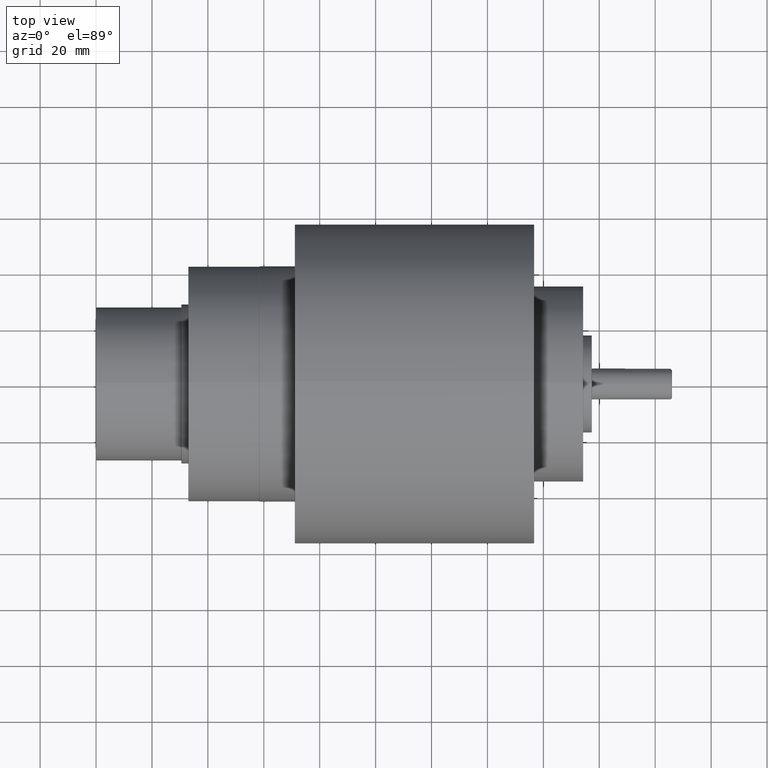
[diagram: clean part render]
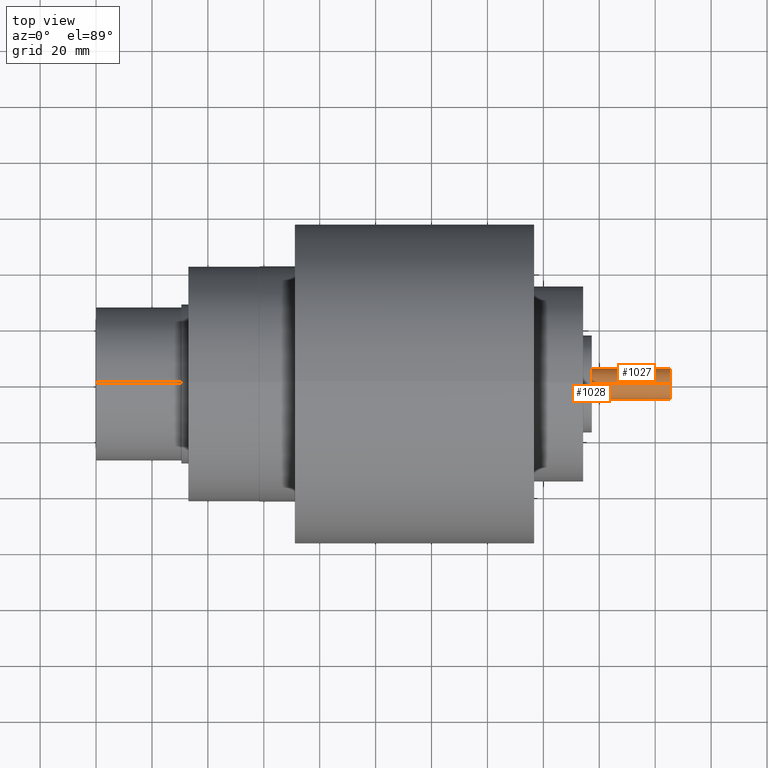
[diagram: same view with one multi-face feature highlighted, each face labeled with its STEP entity id]
A machine part, top view. The highlighted faces form ONE feature: a constant-radius fillet chain: 2 tangent blend faces with common blend radius 5.5499 mm. The faces share edges in the B-rep.
Their STEP definitions:
[1] entity #1027 (Cylinder):
#2 = EDGE_CURVE ( 'NONE', #249, #246, #1200, .T. ) ;
#8 = EDGE_CURVE ( 'NONE', #243, #244, #1205, .T. ) ;
#9 = EDGE_CURVE ( 'NONE', #250, #242, #1204, .T. ) ;
#10 = EDGE_CURVE ( 'NONE', #252, #245, #1210, .T. ) ;
#11 = EDGE_CURVE ( 'NONE', #242, #243, #191, .T. ) ;
#13 = EDGE_CURVE ( 'NONE', #252, #244, #1221, .T. ) ;
#77 = DIRECTION ( 'NONE',  ( 0.0000000000000000000, 0.0000000000000000000, -1.000000000000000000 ) ) ;
#123 = CARTESIAN_POINT ( 'NONE',  ( 8.090000000000005200, 0.0000000000000000000, 0.2185000000000000000 ) ) ;
#125 = CARTESIAN_POINT ( 'NONE',  ( 8.090000000000005200, 0.2133852150454665100, -0.04699999999999998600 ) ) ;
#127 = CARTESIAN_POINT ( 'NONE',  ( 6.979999999999999500, 2.675853256136966400E-017, -0.2185000000000000000 ) ) ;
#128 = CARTESIAN_POINT ( 'NONE',  ( 6.979999999999999500, 0.0000000000000000000, 0.2185000000000000000 ) ) ;
#129 = CARTESIAN_POINT ( 'NONE',  ( 8.090000000000005200, 0.2133852150454665100, 0.04699999999999998600 ) ) ;
#130 = CARTESIAN_POINT ( 'NONE',  ( 7.480000000000000400, 0.2133852150454671500, 0.04700000000000000700 ) ) ;
#131 = CARTESIAN_POINT ( 'NONE',  ( 7.480000000000000400, 0.2133852150454660100, -0.04700000000000000700 ) ) ;
#133 = CARTESIAN_POINT ( 'NONE',  ( 8.090000000000005200, 2.675853256136966400E-017, -0.2185000000000000000 ) ) ;
#165 = DIRECTION ( 'NONE',  ( 1.000000000000000000, 0.0000000000000000000, 0.0000000000000000000 ) ) ;
#166 = CARTESIAN_POINT ( 'NONE',  ( 6.979999999999999500, 0.0000000000000000000, 0.0000000000000000000 ) ) ;
#167 = EDGE_CURVE ( 'NONE', #246, #245, #1280, .T. ) ;
#191 = B_SPLINE_CURVE_WITH_KNOTS ( 'NONE', 3,
 ( #378, #381, #382, #383, #384, #385, #386, #387, #388, #389, #390, #391, #392, #393, #394, #395, #396, #397 ),
 .UNSPECIFIED., .F., .F.,
 ( 4, 2, 2, 2, 2, 2, 2, 2, 4 ),
 ( 0.0000000000000000000, 0.0004677826416447532000, 0.0009355652832895064000, 0.001403347924934259500, 0.001871130566579012800, 0.002338913208223766100, 0.002806695849868519000, 0.003274478491513272300, 0.003742261133158025600 ),
 .UNSPECIFIED. ) ;
#238 = CARTESIAN_POINT ( 'NONE',  ( 8.728011326757043200, 2.675853256136966400E-017, -0.2185000000000000000 ) ) ;
#242 = VERTEX_POINT ( 'NONE', #131 ) ;
#243 = VERTEX_POINT ( 'NONE', #130 ) ;
#244 = VERTEX_POINT ( 'NONE', #129 ) ;
#245 = VERTEX_POINT ( 'NONE', #128 ) ;
#246 = VERTEX_POINT ( 'NONE', #127 ) ;
#249 = VERTEX_POINT ( 'NONE', #133 ) ;
#250 = VERTEX_POINT ( 'NONE', #125 ) ;
#252 = VERTEX_POINT ( 'NONE', #123 ) ;
#361 = DIRECTION ( 'NONE',  ( -1.000000000000000000, -0.0000000000000000000, -0.0000000000000000000 ) ) ;
#369 = CARTESIAN_POINT ( 'NONE',  ( 8.728011326757043200, 0.2133852150454665100, 0.04699999999999998600 ) ) ;
#373 = CARTESIAN_POINT ( 'NONE',  ( 8.728011326757043200, 0.2133852150454665100, -0.04699999999999998600 ) ) ;
#374 = DIRECTION ( 'NONE',  ( 1.000000000000000000, 0.0000000000000000000, 0.0000000000000000000 ) ) ;
#375 = CARTESIAN_POINT ( 'NONE',  ( 8.728011326757043200, 0.0000000000000000000, 0.2185000000000000000 ) ) ;
#376 = DIRECTION ( 'NONE',  ( -1.000000000000000000, -0.0000000000000000000, -0.0000000000000000000 ) ) ;
#378 = CARTESIAN_POINT ( 'NONE',  ( 7.480000000000000400, 0.2133852150454660100, -0.04700000000000000700 ) ) ;
#379 = DIRECTION ( 'NONE',  ( -1.000000000000000000, -0.0000000000000000000, -0.0000000000000000000 ) ) ;
#381 = CARTESIAN_POINT ( 'NONE',  ( 7.473771261722447400, 0.2133852150454660100, -0.04700000000000001400 ) ) ;
#382 = CARTESIAN_POINT ( 'NONE',  ( 7.467660818298758100, 0.2136665640571232500, -0.04576739682061149000 ) ) ;
#383 = CARTESIAN_POINT ( 'NONE',  ( 7.456288236598802600, 0.2146238405082594200, -0.04104463781296249800 ) ) ;
#384 = CARTESIAN_POINT ( 'NONE',  ( 7.451086752215180900, 0.2152928194206962000, -0.03755481662174313400 ) ) ;
#385 = CARTESIAN_POINT ( 'NONE',  ( 7.442445002873266300, 0.2166227135039975600, -0.02891301332912633900 ) ) ;
#386 = CARTESIAN_POINT ( 'NONE',  ( 7.438945870412268800, 0.2172864423014405400, -0.02368535849771217000 ) ) ;
#387 = CARTESIAN_POINT ( 'NONE',  ( 7.434250108466073000, 0.2182223843403265100, -0.01238487739160907100 ) ) ;
#388 = CARTESIAN_POINT ( 'NONE',  ( 7.433005140220069900, 0.2184988943237374500, -0.006188670148016275700 ) ) ;
#389 = CARTESIAN_POINT ( 'NONE',  ( 7.432994892410069300, 0.2185010986574237900, 0.006110347322001832700 ) ) ;
#390 = CARTESIAN_POINT ( 'NONE',  ( 7.434214221346470800, 0.2182297795293510800, 0.01227772691546763100 ) ) ;
#391 = CARTESIAN_POINT ( 'NONE',  ( 7.438935431974213600, 0.2172882829184850100, 0.02368082257811992400 ) ) ;
#392 = CARTESIAN_POINT ( 'NONE',  ( 7.442387900350169600, 0.2166318227147361600, 0.02885162619639094000 ) ) ;
#393 = CARTESIAN_POINT ( 'NONE',  ( 7.451111295852925300, 0.2152887219524916600, 0.03758362870915808000 ) ) ;
#394 = CARTESIAN_POINT ( 'NONE',  ( 7.456283788817991400, 0.2146246024974961300, 0.04104053224114012600 ) ) ;
#395 = CARTESIAN_POINT ( 'NONE',  ( 7.467635848392661500, 0.2136682792773600700, 0.04575928009154369600 ) ) ;
#396 = CARTESIAN_POINT ( 'NONE',  ( 7.473771194313755500, 0.2133852150454665900, 0.04699999999999999300 ) ) ;
#397 = CARTESIAN_POINT ( 'NONE',  ( 7.480000000000000400, 0.2133852150454671500, 0.04700000000000000700 ) ) ;
#400 = CARTESIAN_POINT ( 'NONE',  ( 8.090000000000005200, 0.0000000000000000000, 0.0000000000000000000 ) ) ;
#402 = DIRECTION ( 'NONE',  ( -1.000000000000000000, 0.0000000000000000000, 0.0000000000000000000 ) ) ;
#403 = DIRECTION ( 'NONE',  ( 0.0000000000000000000, 0.0000000000000000000, -1.000000000000000000 ) ) ;
#544 = EDGE_CURVE ( 'NONE', #250, #249, #1361, .T. ) ;
#642 = AXIS2_PLACEMENT_3D ( 'NONE', #400, #402, #403 ) ;
#712 = EDGE_LOOP ( 'NONE', ( #874, #875, #876, #877, #878, #879, #880, #881 ) ) ;
#874 = ORIENTED_EDGE ( 'NONE', *, *, #544, .T. ) ;
#875 = ORIENTED_EDGE ( 'NONE', *, *, #2, .T. ) ;
#876 = ORIENTED_EDGE ( 'NONE', *, *, #167, .T. ) ;
#877 = ORIENTED_EDGE ( 'NONE', *, *, #10, .F. ) ;
#878 = ORIENTED_EDGE ( 'NONE', *, *, #13, .T. ) ;
#879 = ORIENTED_EDGE ( 'NONE', *, *, #8, .F. ) ;
#880 = ORIENTED_EDGE ( 'NONE', *, *, #11, .F. ) ;
#881 = ORIENTED_EDGE ( 'NONE', *, *, #9, .F. ) ;
#1027 = ADVANCED_FACE ( 'NONE', ( #2388 ), #2397, .T. ) ;
#1198 = VECTOR ( 'NONE', #361, 39.37007874015748100 ) ;
#1200 = LINE ( 'NONE', #238, #1198 ) ;
#1204 = LINE ( 'NONE', #373, #1215 ) ;
#1205 = LINE ( 'NONE', #369, #1213 ) ;
#1210 = LINE ( 'NONE', #375, #1217 ) ;
#1213 = VECTOR ( 'NONE', #374, 39.37007874015748100 ) ;
#1215 = VECTOR ( 'NONE', #376, 39.37007874015748100 ) ;
#1217 = VECTOR ( 'NONE', #379, 39.37007874015748100 ) ;
#1221 = CIRCLE ( 'NONE', #642, 0.2185000000000000000 ) ;
#1280 = CIRCLE ( 'NONE', #1368, 0.2185000000000000000 ) ;
#1361 = CIRCLE ( 'NONE', #1411, 0.2185000000000000000 ) ;
#1368 = AXIS2_PLACEMENT_3D ( 'NONE', #166, #165, #77 ) ;
#1411 = AXIS2_PLACEMENT_3D ( 'NONE', #1771, #1782, #1783 ) ;
#1513 = AXIS2_PLACEMENT_3D ( 'NONE', #2131, #2130, #2126 ) ;
#1771 = CARTESIAN_POINT ( 'NONE',  ( 8.090000000000005200, 0.0000000000000000000, 0.0000000000000000000 ) ) ;
#1782 = DIRECTION ( 'NONE',  ( -1.000000000000000000, 0.0000000000000000000, 0.0000000000000000000 ) ) ;
#1783 = DIRECTION ( 'NONE',  ( 0.0000000000000000000, -3.552713678800500900E-015, -1.000000000000000000 ) ) ;
#2126 = DIRECTION ( 'NONE',  ( 0.0000000000000000000, 0.0000000000000000000, 1.000000000000000000 ) ) ;
#2130 = DIRECTION ( 'NONE',  ( -1.000000000000000000, -0.0000000000000000000, -0.0000000000000000000 ) ) ;
#2131 = CARTESIAN_POINT ( 'NONE',  ( 8.728011326757043200, 0.0000000000000000000, 0.0000000000000000000 ) ) ;
#2388 = FACE_OUTER_BOUND ( 'NONE', #712, .T. ) ;
#2397 = CYLINDRICAL_SURFACE ( 'NONE', #1513, 0.2185000000000000000 ) ;
[2] entity #1028 (Cylinder):
#2 = EDGE_CURVE ( 'NONE', #249, #246, #1200, .T. ) ;
#10 = EDGE_CURVE ( 'NONE', #252, #245, #1210, .T. ) ;
#123 = CARTESIAN_POINT ( 'NONE',  ( 8.090000000000005200, 0.0000000000000000000, 0.2185000000000000000 ) ) ;
#127 = CARTESIAN_POINT ( 'NONE',  ( 6.979999999999999500, 2.675853256136966400E-017, -0.2185000000000000000 ) ) ;
#128 = CARTESIAN_POINT ( 'NONE',  ( 6.979999999999999500, 0.0000000000000000000, 0.2185000000000000000 ) ) ;
#133 = CARTESIAN_POINT ( 'NONE',  ( 8.090000000000005200, 2.675853256136966400E-017, -0.2185000000000000000 ) ) ;
#238 = CARTESIAN_POINT ( 'NONE',  ( 8.728011326757043200, 2.675853256136966400E-017, -0.2185000000000000000 ) ) ;
#245 = VERTEX_POINT ( 'NONE', #128 ) ;
#246 = VERTEX_POINT ( 'NONE', #127 ) ;
#249 = VERTEX_POINT ( 'NONE', #133 ) ;
#252 = VERTEX_POINT ( 'NONE', #123 ) ;
#361 = DIRECTION ( 'NONE',  ( -1.000000000000000000, -0.0000000000000000000, -0.0000000000000000000 ) ) ;
#375 = CARTESIAN_POINT ( 'NONE',  ( 8.728011326757043200, 0.0000000000000000000, 0.2185000000000000000 ) ) ;
#379 = DIRECTION ( 'NONE',  ( -1.000000000000000000, -0.0000000000000000000, -0.0000000000000000000 ) ) ;
#545 = EDGE_CURVE ( 'NONE', #249, #252, #1362, .T. ) ;
#709 = EDGE_LOOP ( 'NONE', ( #882, #883, #884, #885 ) ) ;
#882 = ORIENTED_EDGE ( 'NONE', *, *, #2, .F. ) ;
#883 = ORIENTED_EDGE ( 'NONE', *, *, #545, .T. ) ;
#884 = ORIENTED_EDGE ( 'NONE', *, *, #10, .T. ) ;
#885 = ORIENTED_EDGE ( 'NONE', *, *, #2684, .T. ) ;
#1028 = ADVANCED_FACE ( 'NONE', ( #2390 ), #2399, .T. ) ;
#1198 = VECTOR ( 'NONE', #361, 39.37007874015748100 ) ;
#1200 = LINE ( 'NONE', #238, #1198 ) ;
#1210 = LINE ( 'NONE', #375, #1217 ) ;
#1217 = VECTOR ( 'NONE', #379, 39.37007874015748100 ) ;
#1362 = CIRCLE ( 'NONE', #1412, 0.2185000000000000000 ) ;
#1412 = AXIS2_PLACEMENT_3D ( 'NONE', #1778, #1785, #1786 ) ;
#1514 = AXIS2_PLACEMENT_3D ( 'NONE', #2134, #2133, #2129 ) ;
#1567 = AXIS2_PLACEMENT_3D ( 'NONE', #2584, #2585, #2587 ) ;
#1778 = CARTESIAN_POINT ( 'NONE',  ( 8.090000000000005200, 0.0000000000000000000, 0.0000000000000000000 ) ) ;
#1785 = DIRECTION ( 'NONE',  ( -1.000000000000000000, 0.0000000000000000000, 0.0000000000000000000 ) ) ;
#1786 = DIRECTION ( 'NONE',  ( 0.0000000000000000000, 0.0000000000000000000, -1.000000000000000000 ) ) ;
#2129 = DIRECTION ( 'NONE',  ( 0.0000000000000000000, 0.0000000000000000000, 1.000000000000000000 ) ) ;
#2133 = DIRECTION ( 'NONE',  ( -1.000000000000000000, -0.0000000000000000000, -0.0000000000000000000 ) ) ;
#2134 = CARTESIAN_POINT ( 'NONE',  ( 8.728011326757043200, 0.0000000000000000000, 0.0000000000000000000 ) ) ;
#2390 = FACE_OUTER_BOUND ( 'NONE', #709, .T. ) ;
#2399 = CYLINDRICAL_SURFACE ( 'NONE', #1514, 0.2185000000000000000 ) ;
#2584 = CARTESIAN_POINT ( 'NONE',  ( 6.979999999999999500, 0.0000000000000000000, 0.0000000000000000000 ) ) ;
#2585 = DIRECTION ( 'NONE',  ( 1.000000000000000000, 0.0000000000000000000, 0.0000000000000000000 ) ) ;
#2587 = DIRECTION ( 'NONE',  ( 0.0000000000000000000, 0.0000000000000000000, -1.000000000000000000 ) ) ;
#2640 = CIRCLE ( 'NONE', #1567, 0.2185000000000000000 ) ;
#2684 = EDGE_CURVE ( 'NONE', #245, #246, #2640, .T. ) ;